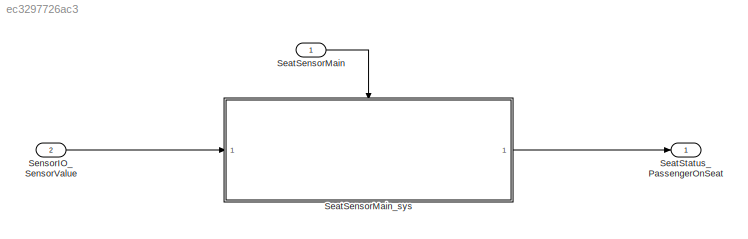
MODEL slx_ec3297726ac3
KIND model
CONFIG AbsTol = auto
CONFIG FixedStep = auto
CONFIG MaxStep = auto
CONFIG MinStep = auto
CONFIG RelTol = 1e-3
CONFIG SampleTimeConstraint = Unconstrained
CONFIG Solver = FixedStepDiscrete
CONFIG SolverMode = Auto
CONFIG SolverName = FixedStepDiscrete
CONFIG StartTime = 0.0
CONFIG StopTime = 10.0
BLOCK [Inport] SeatSensorMain
  IconDisplay = Port number
  OutputFunctionCall = on
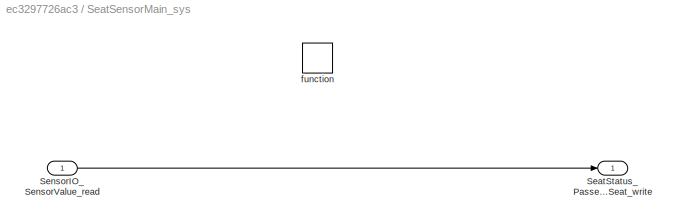
BLOCK [SubSystem] SeatSensorMain_sys
  Ports = [1, 1, 0, 1]
  RequestExecContextInheritance = off
BLOCK [Outport] SeatSensorMain_sys/SeatStatus_PassengerOnSeat_write
  IconDisplay = Port number
BLOCK [Inport] SeatSensorMain_sys/SensorIO_SensorValue_read
  IconDisplay = Port number
BLOCK [TriggerPort] SeatSensorMain_sys/function
  Ports = []
  StatesWhenEnabling = held
  TriggerType = function-call
BLOCK [Outport] SeatStatus_PassengerOnSeat
  IconDisplay = Port number
  OutDataTypeStr = boolean
  PortDimensions = 1
  SamplingMode = Sample based
  SignalType = real
BLOCK [Inport] SensorIO_SensorValue
  IconDisplay = Port number
  OutDataTypeStr = boolean
  Port = 2
  PortDimensions = 1
  SamplingMode = Sample based
  SignalType = real
LINE SeatSensorMain:1 -> SeatSensorMain_sys:trigger
LINE SeatSensorMain_sys/SensorIO_SensorValue_read:1 -> SeatSensorMain_sys/SeatStatus_PassengerOnSeat_write:1
LINE SeatSensorMain_sys:1 -> SeatStatus_PassengerOnSeat:1
LINE SensorIO_SensorValue:1 -> SeatSensorMain_sys:1
